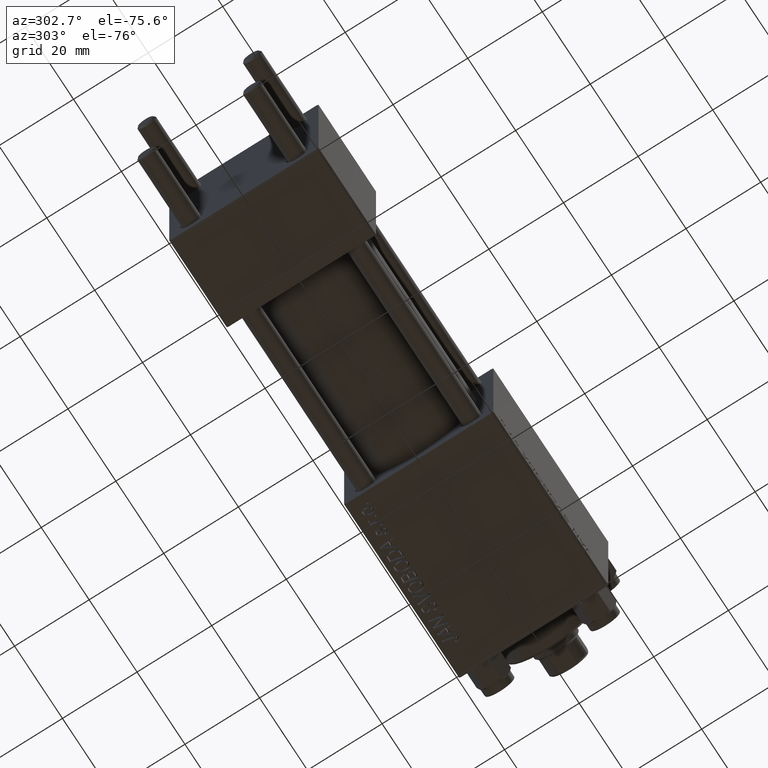
[diagram: clean part render]
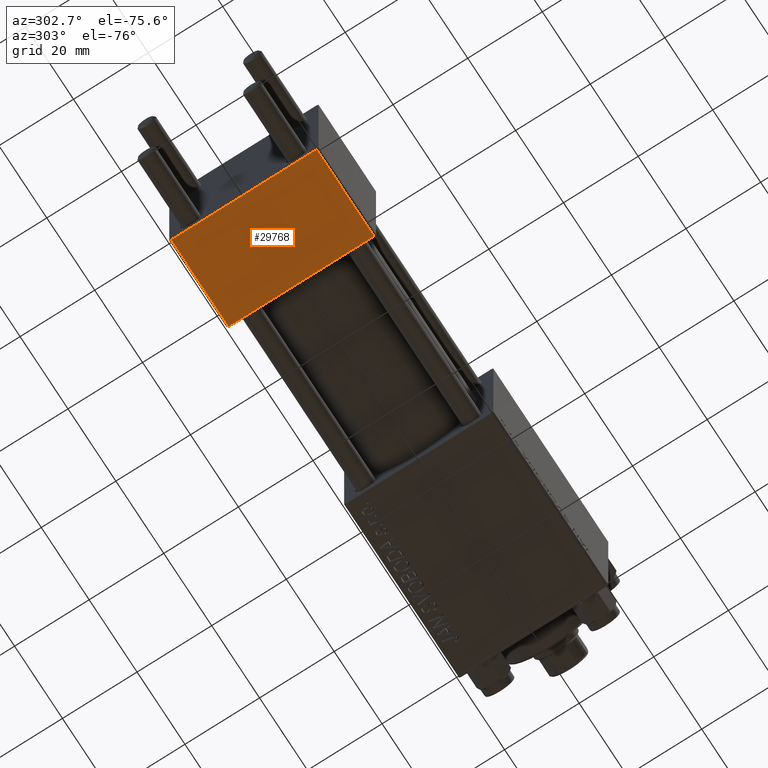
[diagram: same view with one face highlighted and labeled with its STEP entity id]
A machine part, auxiliary view. The second image highlights one B-rep face of the part: STEP entity #29768.
In plain terms, the highlighted planar face has unit normal (0, -0, -1).
Its self-contained STEP definition (entity closure, byte-faithful):
#1604 = EDGE_CURVE ( 'NONE', #10138, #15962, #44293, .T. ) ;
#1645 = CARTESIAN_POINT ( 'NONE',  ( 24.00000000000000000, 19.50000000000000711, -20.00000000000000711 ) ) ;
#3498 = CARTESIAN_POINT ( 'NONE',  ( 0.000000000000000000, 20.00000000000000000, -20.00000000000000711 ) ) ;
#7095 = CARTESIAN_POINT ( 'NONE',  ( 0.000000000000000000, -19.50000000000000711, -20.00000000000000000 ) ) ;
#7159 = VECTOR ( 'NONE', #19358, 1000.000000000000000 ) ;
#7731 = LINE ( 'NONE', #47111, #7159 ) ;
#8343 = ORIENTED_EDGE ( 'NONE', *, *, #42041, .T. ) ;
#10138 = VERTEX_POINT ( 'NONE', #12712 ) ;
#12455 = CARTESIAN_POINT ( 'NONE',  ( 0.000000000000000000, -19.50000000000000711, -20.00000000000000000 ) ) ;
#12712 = CARTESIAN_POINT ( 'NONE',  ( 0.000000000000000000, 19.50000000000000711, -20.00000000000000711 ) ) ;
#14085 = DIRECTION ( 'NONE',  ( 0.000000000000000000, 1.000000000000000000, -1.734723475976806848E-16 ) ) ;
#15666 = VERTEX_POINT ( 'NONE', #7095 ) ;
#15962 = VERTEX_POINT ( 'NONE', #36836 ) ;
#17887 = FACE_OUTER_BOUND ( 'NONE', #44943, .T. ) ;
#17910 = CARTESIAN_POINT ( 'NONE',  ( 24.00000000000000000, -19.50000000000000711, -20.00000000000000000 ) ) ;
#18897 = DIRECTION ( 'NONE',  ( 0.000000000000000000, -1.000000000000000000, 1.734723475976807094E-16 ) ) ;
#19358 = DIRECTION ( 'NONE',  ( 0.000000000000000000, -1.000000000000000000, 1.734723475976807094E-16 ) ) ;
#20521 = DIRECTION ( 'NONE',  ( -1.000000000000000000, 0.000000000000000000, 0.000000000000000000 ) ) ;
#21273 = VECTOR ( 'NONE', #25095, 1000.000000000000000 ) ;
#21657 = VECTOR ( 'NONE', #20521, 1000.000000000000000 ) ;
#22678 = LINE ( 'NONE', #3498, #33587 ) ;
#23557 = LINE ( 'NONE', #12455, #21657 ) ;
#25095 = DIRECTION ( 'NONE',  ( 1.000000000000000000, 0.000000000000000000, 0.000000000000000000 ) ) ;
#25838 = ORIENTED_EDGE ( 'NONE', *, *, #35849, .F. ) ;
#29768 = ADVANCED_FACE ( 'NONE', ( #17887 ), #33513, .T. ) ;
#31689 = VERTEX_POINT ( 'NONE', #17910 ) ;
#33513 = PLANE ( 'NONE',  #42751 ) ;
#33587 = VECTOR ( 'NONE', #18897, 1000.000000000000000 ) ;
#34789 = ORIENTED_EDGE ( 'NONE', *, *, #41284, .T. ) ;
#35849 = EDGE_CURVE ( 'NONE', #10138, #15666, #22678, .T. ) ;
#36836 = CARTESIAN_POINT ( 'NONE',  ( 24.00000000000000000, 19.50000000000000711, -20.00000000000000711 ) ) ;
#41284 = EDGE_CURVE ( 'NONE', #31689, #15666, #23557, .T. ) ;
#42041 = EDGE_CURVE ( 'NONE', #15962, #31689, #7731, .T. ) ;
#42751 = AXIS2_PLACEMENT_3D ( 'NONE', #48923, #48677, #14085 ) ;
#44293 = LINE ( 'NONE', #1645, #21273 ) ;
#44326 = ORIENTED_EDGE ( 'NONE', *, *, #1604, .T. ) ;
#44943 = EDGE_LOOP ( 'NONE', ( #25838, #44326, #8343, #34789 ) ) ;
#47111 = CARTESIAN_POINT ( 'NONE',  ( 24.00000000000000000, 20.00000000000000000, -20.00000000000000711 ) ) ;
#48677 = DIRECTION ( 'NONE',  ( 0.000000000000000000, -1.734723475976806848E-16, -1.000000000000000000 ) ) ;
#48923 = CARTESIAN_POINT ( 'NONE',  ( 24.00000000000000000, 20.00000000000000000, -20.00000000000000711 ) ) ;